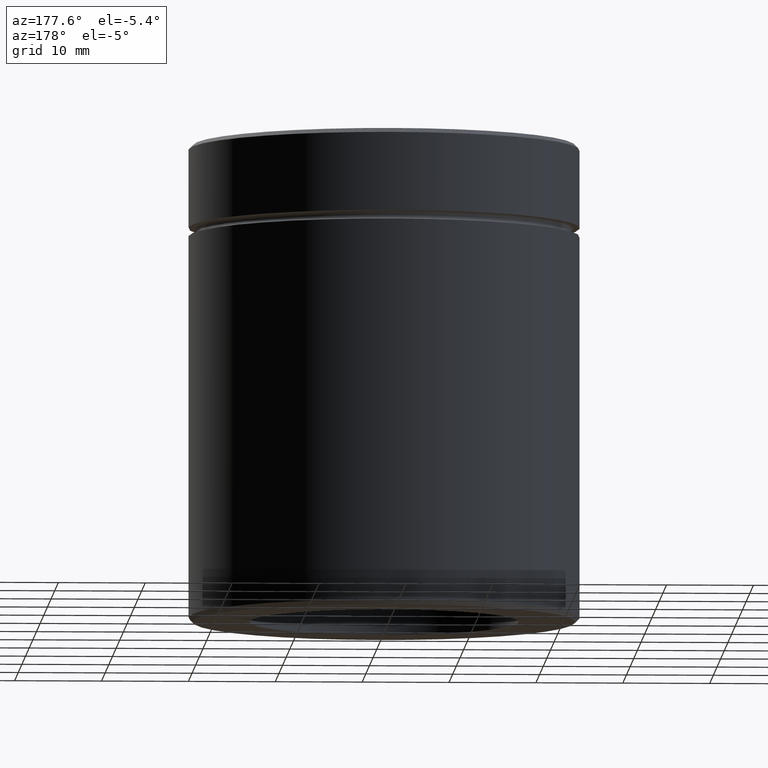
[diagram: clean part render]
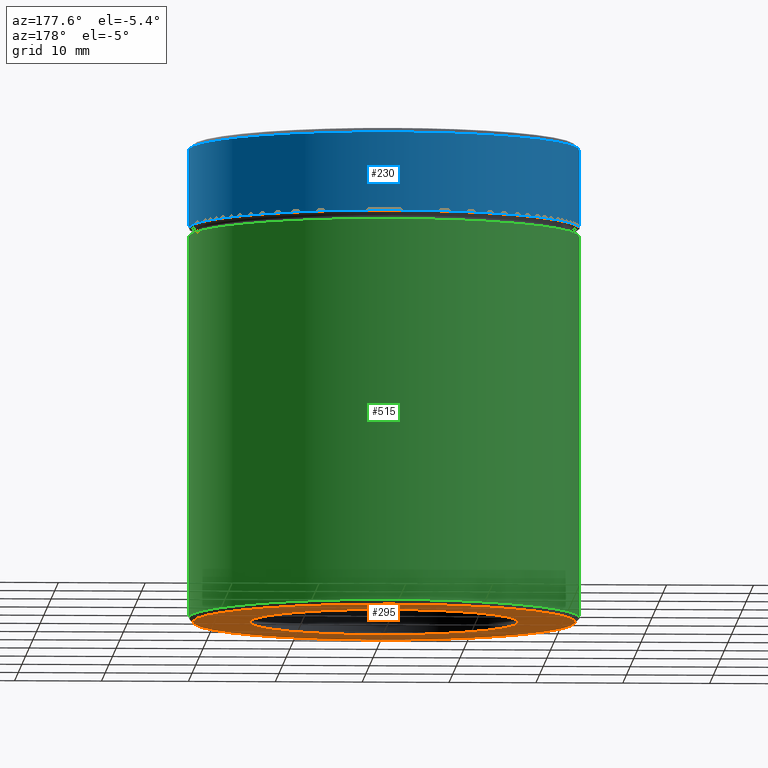
[diagram: same view with three faces highlighted in distinct colors, each labeled with its STEP entity id]
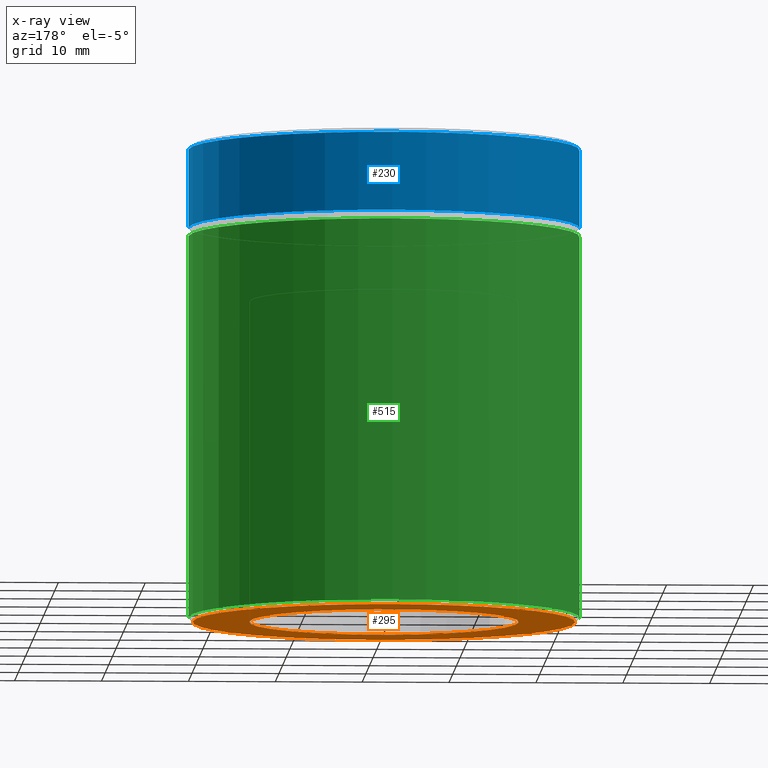
[diagram: x-ray of the same camera — body ghosted, the three highlighted faces saturated]
A machine part, auxiliary view with three faces highlighted in distinct colors.
The next image is the same camera in x-ray (body ghosted, the three faces saturated) — at least one of them is partly hidden behind the body in this view.
Their STEP definitions:

[orange] entity #295 — the highlighted planar face has unit normal (0, 0, -1).
#24 = VERTEX_POINT ( 'NONE', #565 ) ;
#39 = CARTESIAN_POINT ( 'NONE',  ( -15.50000000000000000, 0.000000000000000000, -55.00000000000000000 ) ) ;
#41 = VERTEX_POINT ( 'NONE', #338 ) ;
#64 = DIRECTION ( 'NONE',  ( -1.000000000000000000, 0.000000000000000000, -0.000000000000000000 ) ) ;
#96 = VERTEX_POINT ( 'NONE', #39 ) ;
#109 = ORIENTED_EDGE ( 'NONE', *, *, #507, .F. ) ;
#112 = AXIS2_PLACEMENT_3D ( 'NONE', #118, #412, #64 ) ;
#118 = CARTESIAN_POINT ( 'NONE',  ( 0.000000000000000000, 22.50000000000000000, -55.00000000000000000 ) ) ;
#139 = EDGE_LOOP ( 'NONE', ( #465, #219 ) ) ;
#141 = DIRECTION ( 'NONE',  ( -1.000000000000000000, 0.000000000000000000, 0.000000000000000000 ) ) ;
#158 = FACE_OUTER_BOUND ( 'NONE', #139, .T. ) ;
#168 = DIRECTION ( 'NONE',  ( -1.000000000000000000, 0.000000000000000000, 0.000000000000000000 ) ) ;
#190 = EDGE_CURVE ( 'NONE', #24, #347, #225, .T. ) ;
#193 = DIRECTION ( 'NONE',  ( 0.000000000000000000, 0.000000000000000000, -1.000000000000000000 ) ) ;
#206 = AXIS2_PLACEMENT_3D ( 'NONE', #449, #441, #141 ) ;
#219 = ORIENTED_EDGE ( 'NONE', *, *, #307, .T. ) ;
#225 = CIRCLE ( 'NONE', #206, 21.99999999999999289 ) ;
#236 = DIRECTION ( 'NONE',  ( 0.000000000000000000, 0.000000000000000000, -1.000000000000000000 ) ) ;
#241 = FACE_BOUND ( 'NONE', #463, .T. ) ;
#246 = CARTESIAN_POINT ( 'NONE',  ( 0.000000000000000000, 0.000000000000000000, -55.00000000000000000 ) ) ;
#255 = CIRCLE ( 'NONE', #302, 21.99999999999999289 ) ;
#274 = DIRECTION ( 'NONE',  ( 0.000000000000000000, 0.000000000000000000, -1.000000000000000000 ) ) ;
#275 = EDGE_CURVE ( 'NONE', #96, #41, #547, .T. ) ;
#295 = ADVANCED_FACE ( 'NONE', ( #158, #241 ), #408, .T. ) ;
#302 = AXIS2_PLACEMENT_3D ( 'NONE', #510, #193, #400 ) ;
#307 = EDGE_CURVE ( 'NONE', #347, #24, #255, .T. ) ;
#311 = CARTESIAN_POINT ( 'NONE',  ( -21.99999999999999289, 2.724839128102860202E-15, -55.00000000000000000 ) ) ;
#338 = CARTESIAN_POINT ( 'NONE',  ( 15.50000000000000000, 1.898202538678397557E-15, -55.00000000000000000 ) ) ;
#347 = VERTEX_POINT ( 'NONE', #311 ) ;
#363 = ORIENTED_EDGE ( 'NONE', *, *, #275, .F. ) ;
#370 = CARTESIAN_POINT ( 'NONE',  ( 0.000000000000000000, 0.000000000000000000, -55.00000000000000000 ) ) ;
#400 = DIRECTION ( 'NONE',  ( -1.000000000000000000, 0.000000000000000000, 0.000000000000000000 ) ) ;
#408 = PLANE ( 'NONE',  #112 ) ;
#412 = DIRECTION ( 'NONE',  ( 0.000000000000000000, 0.000000000000000000, -1.000000000000000000 ) ) ;
#414 = AXIS2_PLACEMENT_3D ( 'NONE', #246, #274, #544 ) ;
#441 = DIRECTION ( 'NONE',  ( 0.000000000000000000, 0.000000000000000000, -1.000000000000000000 ) ) ;
#449 = CARTESIAN_POINT ( 'NONE',  ( 0.000000000000000000, 0.000000000000000000, -55.00000000000000000 ) ) ;
#463 = EDGE_LOOP ( 'NONE', ( #363, #109 ) ) ;
#465 = ORIENTED_EDGE ( 'NONE', *, *, #190, .T. ) ;
#507 = EDGE_CURVE ( 'NONE', #41, #96, #527, .T. ) ;
#510 = CARTESIAN_POINT ( 'NONE',  ( 0.000000000000000000, 0.000000000000000000, -55.00000000000000000 ) ) ;
#527 = CIRCLE ( 'NONE', #549, 15.50000000000000000 ) ;
#544 = DIRECTION ( 'NONE',  ( -1.000000000000000000, 0.000000000000000000, 0.000000000000000000 ) ) ;
#547 = CIRCLE ( 'NONE', #414, 15.50000000000000000 ) ;
#549 = AXIS2_PLACEMENT_3D ( 'NONE', #370, #236, #168 ) ;
#565 = CARTESIAN_POINT ( 'NONE',  ( 21.99999999999999289, 0.000000000000000000, -55.00000000000000000 ) ) ;

[blue] entity #230 — the highlighted cylindrical surface (partial cylindrical patch) has radius 22.5 mm, axis along (-0, -0, 1).
#16 = AXIS2_PLACEMENT_3D ( 'NONE', #459, #404, #548 ) ;
#51 = DIRECTION ( 'NONE',  ( -0.000000000000000000, -0.000000000000000000, 1.000000000000000000 ) ) ;
#52 = CARTESIAN_POINT ( 'NONE',  ( 22.50000000000000000, 0.000000000000000000, 0.000000000000000000 ) ) ;
#56 = CARTESIAN_POINT ( 'NONE',  ( -22.50000000000000000, 2.755455298081544778E-15, -9.500000000000000000 ) ) ;
#61 = FACE_OUTER_BOUND ( 'NONE', #87, .T. ) ;
#62 = DIRECTION ( 'NONE',  ( 1.000000000000000000, 0.000000000000000000, 0.000000000000000000 ) ) ;
#70 = CYLINDRICAL_SURFACE ( 'NONE', #16, 22.50000000000000000 ) ;
#87 = EDGE_LOOP ( 'NONE', ( #298, #216, #501, #187 ) ) ;
#103 = DIRECTION ( 'NONE',  ( 1.000000000000000000, 0.000000000000000000, 0.000000000000000000 ) ) ;
#113 = CIRCLE ( 'NONE', #337, 22.50000000000000000 ) ;
#117 = CARTESIAN_POINT ( 'NONE',  ( 0.000000000000000000, 0.000000000000000000, -0.5000000000000212053 ) ) ;
#134 = EDGE_CURVE ( 'NONE', #350, #304, #528, .T. ) ;
#150 = DIRECTION ( 'NONE',  ( -0.000000000000000000, -0.000000000000000000, 1.000000000000000000 ) ) ;
#162 = EDGE_CURVE ( 'NONE', #424, #192, #391, .T. ) ;
#169 = AXIS2_PLACEMENT_3D ( 'NONE', #448, #51, #103 ) ;
#187 = ORIENTED_EDGE ( 'NONE', *, *, #134, .F. ) ;
#192 = VERTEX_POINT ( 'NONE', #263 ) ;
#216 = ORIENTED_EDGE ( 'NONE', *, *, #162, .T. ) ;
#224 = CARTESIAN_POINT ( 'NONE',  ( -22.50000000000000000, 2.755455298081544778E-15, 0.000000000000000000 ) ) ;
#230 = ADVANCED_FACE ( 'NONE', ( #61 ), #70, .T. ) ;
#263 = CARTESIAN_POINT ( 'NONE',  ( -22.50000000000000000, 2.755455298081544778E-15, -0.5000000000000212053 ) ) ;
#298 = ORIENTED_EDGE ( 'NONE', *, *, #368, .T. ) ;
#304 = VERTEX_POINT ( 'NONE', #315 ) ;
#315 = CARTESIAN_POINT ( 'NONE',  ( 22.50000000000000000, 0.000000000000000000, -0.5000000000000212053 ) ) ;
#337 = AXIS2_PLACEMENT_3D ( 'NONE', #117, #454, #62 ) ;
#344 = DIRECTION ( 'NONE',  ( -0.000000000000000000, -0.000000000000000000, 1.000000000000000000 ) ) ;
#350 = VERTEX_POINT ( 'NONE', #538 ) ;
#368 = EDGE_CURVE ( 'NONE', #350, #424, #500, .T. ) ;
#371 = VECTOR ( 'NONE', #150, 1000.000000000000000 ) ;
#391 = LINE ( 'NONE', #224, #371 ) ;
#404 = DIRECTION ( 'NONE',  ( -0.000000000000000000, -0.000000000000000000, 1.000000000000000000 ) ) ;
#424 = VERTEX_POINT ( 'NONE', #56 ) ;
#448 = CARTESIAN_POINT ( 'NONE',  ( 0.000000000000000000, 0.000000000000000000, -9.500000000000000000 ) ) ;
#453 = VECTOR ( 'NONE', #344, 1000.000000000000000 ) ;
#454 = DIRECTION ( 'NONE',  ( 0.000000000000000000, 0.000000000000000000, -1.000000000000000000 ) ) ;
#459 = CARTESIAN_POINT ( 'NONE',  ( 0.000000000000000000, 0.000000000000000000, 0.000000000000000000 ) ) ;
#500 = CIRCLE ( 'NONE', #169, 22.50000000000000000 ) ;
#501 = ORIENTED_EDGE ( 'NONE', *, *, #526, .T. ) ;
#526 = EDGE_CURVE ( 'NONE', #192, #304, #113, .T. ) ;
#528 = LINE ( 'NONE', #52, #453 ) ;
#538 = CARTESIAN_POINT ( 'NONE',  ( 22.50000000000000000, 0.000000000000000000, -9.500000000000000000 ) ) ;
#548 = DIRECTION ( 'NONE',  ( 1.000000000000000000, 0.000000000000000000, 0.000000000000000000 ) ) ;

[green] entity #515 — the highlighted cylindrical surface (partial cylindrical patch) has radius 22.5 mm, axis along (-0, -0, 1).
#4 = CARTESIAN_POINT ( 'NONE',  ( 0.000000000000000000, 0.000000000000000000, -10.50000000000000000 ) ) ;
#8 = VERTEX_POINT ( 'NONE', #138 ) ;
#40 = EDGE_CURVE ( 'NONE', #394, #8, #288, .T. ) ;
#55 = ORIENTED_EDGE ( 'NONE', *, *, #151, .F. ) ;
#60 = AXIS2_PLACEMENT_3D ( 'NONE', #4, #386, #452 ) ;
#72 = EDGE_LOOP ( 'NONE', ( #229, #508, #55, #339 ) ) ;
#86 = CARTESIAN_POINT ( 'NONE',  ( -22.50000000000000000, 2.755455298081544778E-15, 0.000000000000000000 ) ) ;
#122 = LINE ( 'NONE', #472, #328 ) ;
#127 = DIRECTION ( 'NONE',  ( -1.000000000000000000, 0.000000000000000000, 0.000000000000000000 ) ) ;
#138 = CARTESIAN_POINT ( 'NONE',  ( -22.50000000000000000, 2.755455298081544778E-15, -10.50000000000000000 ) ) ;
#151 = EDGE_CURVE ( 'NONE', #392, #8, #299, .T. ) ;
#153 = CARTESIAN_POINT ( 'NONE',  ( 22.50000000000000000, 0.000000000000000000, -54.49999999999999289 ) ) ;
#189 = CIRCLE ( 'NONE', #460, 22.50000000000000000 ) ;
#203 = CARTESIAN_POINT ( 'NONE',  ( 0.000000000000000000, 0.000000000000000000, -54.49999999999999289 ) ) ;
#209 = VECTOR ( 'NONE', #253, 1000.000000000000000 ) ;
#229 = ORIENTED_EDGE ( 'NONE', *, *, #487, .T. ) ;
#231 = DIRECTION ( 'NONE',  ( -0.000000000000000000, -0.000000000000000000, 1.000000000000000000 ) ) ;
#253 = DIRECTION ( 'NONE',  ( -0.000000000000000000, -0.000000000000000000, 1.000000000000000000 ) ) ;
#286 = DIRECTION ( 'NONE',  ( -0.000000000000000000, -0.000000000000000000, 1.000000000000000000 ) ) ;
#288 = LINE ( 'NONE', #86, #209 ) ;
#299 = CIRCLE ( 'NONE', #60, 22.50000000000000000 ) ;
#314 = EDGE_CURVE ( 'NONE', #326, #392, #122, .T. ) ;
#326 = VERTEX_POINT ( 'NONE', #153 ) ;
#328 = VECTOR ( 'NONE', #231, 1000.000000000000000 ) ;
#339 = ORIENTED_EDGE ( 'NONE', *, *, #314, .F. ) ;
#385 = CARTESIAN_POINT ( 'NONE',  ( -22.50000000000000000, 2.755455298081544778E-15, -54.49999999999999289 ) ) ;
#386 = DIRECTION ( 'NONE',  ( -0.000000000000000000, -0.000000000000000000, 1.000000000000000000 ) ) ;
#392 = VERTEX_POINT ( 'NONE', #450 ) ;
#394 = VERTEX_POINT ( 'NONE', #385 ) ;
#415 = CYLINDRICAL_SURFACE ( 'NONE', #534, 22.50000000000000000 ) ;
#450 = CARTESIAN_POINT ( 'NONE',  ( 22.50000000000000000, 0.000000000000000000, -10.50000000000000000 ) ) ;
#452 = DIRECTION ( 'NONE',  ( 1.000000000000000000, 0.000000000000000000, 0.000000000000000000 ) ) ;
#460 = AXIS2_PLACEMENT_3D ( 'NONE', #203, #494, #127 ) ;
#472 = CARTESIAN_POINT ( 'NONE',  ( 22.50000000000000000, 0.000000000000000000, 0.000000000000000000 ) ) ;
#487 = EDGE_CURVE ( 'NONE', #326, #394, #189, .T. ) ;
#494 = DIRECTION ( 'NONE',  ( -0.000000000000000000, -0.000000000000000000, 1.000000000000000000 ) ) ;
#508 = ORIENTED_EDGE ( 'NONE', *, *, #40, .T. ) ;
#509 = FACE_OUTER_BOUND ( 'NONE', #72, .T. ) ;
#513 = CARTESIAN_POINT ( 'NONE',  ( 0.000000000000000000, 0.000000000000000000, 0.000000000000000000 ) ) ;
#515 = ADVANCED_FACE ( 'NONE', ( #509 ), #415, .T. ) ;
#534 = AXIS2_PLACEMENT_3D ( 'NONE', #513, #286, #546 ) ;
#546 = DIRECTION ( 'NONE',  ( 1.000000000000000000, 0.000000000000000000, 0.000000000000000000 ) ) ;